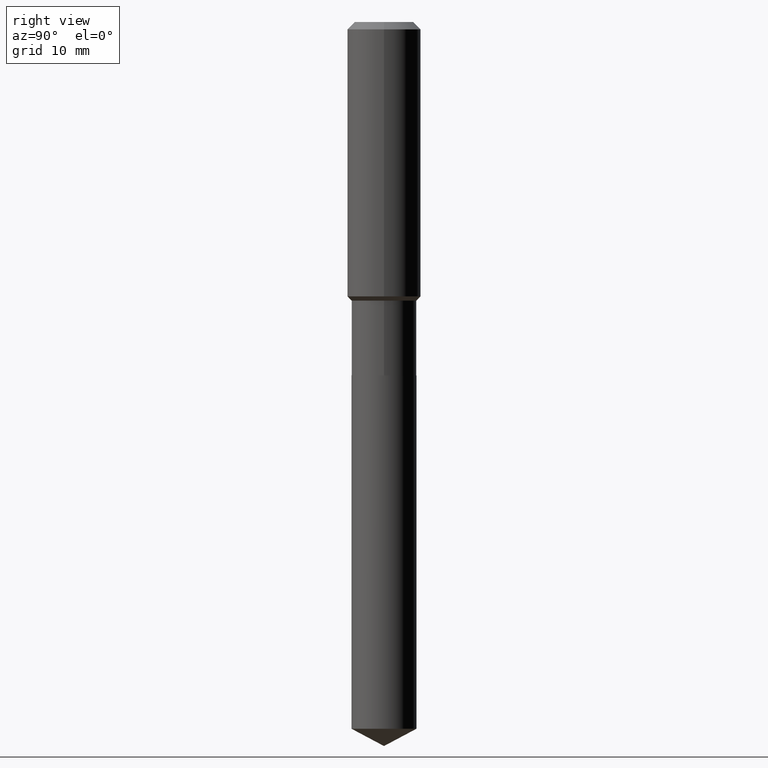
[diagram: clean part render]
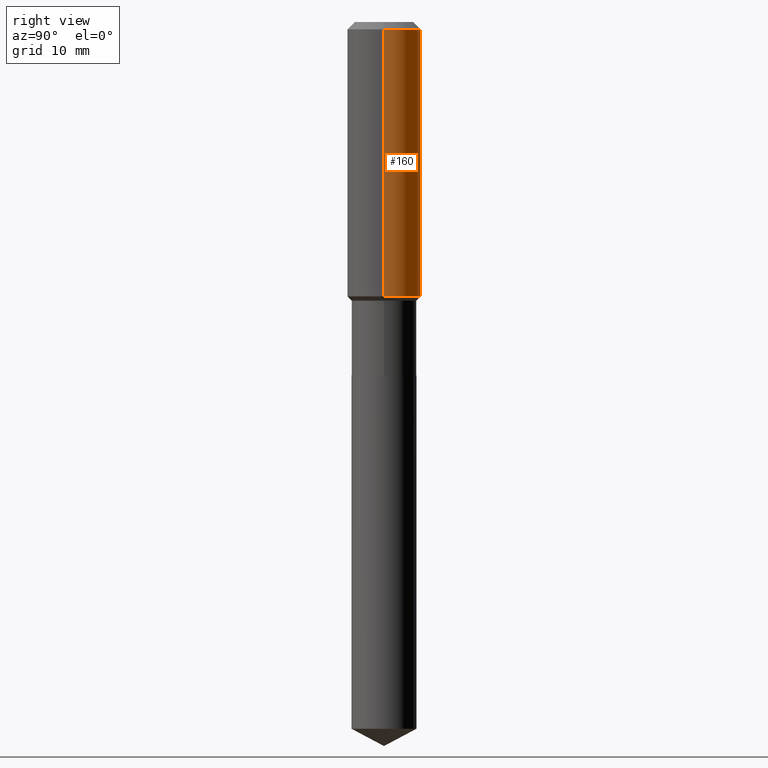
[diagram: same view with one face highlighted and labeled with its STEP entity id]
A machine part, right view. The second image highlights one B-rep face of the part: STEP entity #160.
In plain terms, the highlighted cylindrical surface (partial cylindrical patch) has radius 5.9995 mm, axis along (-0, 0, 1).
Its self-contained STEP definition (entity closure, byte-faithful):
#1 = DIRECTION ( 'NONE',  ( -2.445468806185136597E-29, 3.491481338843145583E-15, 1.000000000000000000 ) ) ;
#32 = VERTEX_POINT ( 'NONE', #277 ) ;
#33 = CARTESIAN_POINT ( 'NONE',  ( 4.304636466087385309E-29, -6.145880026698644311E-15, -1.760249999999999426 ) ) ;
#41 = ORIENTED_EDGE ( 'NONE', *, *, #362, .F. ) ;
#48 = CYLINDRICAL_SURFACE ( 'NONE', #246, 0.2362000000000001043 ) ;
#53 = FACE_OUTER_BOUND ( 'NONE', #92, .T. ) ;
#89 = CARTESIAN_POINT ( 'NONE',  ( 0.2361999999999999933, -1.814313362916447440E-15, -0.04724000000000028177 ) ) ;
#90 = VERTEX_POINT ( 'NONE', #324 ) ;
#92 = EDGE_LOOP ( 'NONE', ( #103, #459, #41, #288 ) ) ;
#103 = ORIENTED_EDGE ( 'NONE', *, *, #484, .T. ) ;
#126 = VECTOR ( 'NONE', #467, 39.37007874015748143 ) ;
#129 = DIRECTION ( 'NONE',  ( 1.000000000000000000, -6.982962677686266711E-15, 4.876176775795935793E-29 ) ) ;
#138 = EDGE_CURVE ( 'NONE', #249, #32, #245, .T. ) ;
#160 = ADVANCED_FACE ( 'NONE', ( #53 ), #48, .T. ) ;
#161 = VERTEX_POINT ( 'NONE', #89 ) ;
#169 = AXIS2_PLACEMENT_3D ( 'NONE', #174, #327, #293 ) ;
#174 = CARTESIAN_POINT ( 'NONE',  ( 1.155239464041865506E-30, -1.649375784469511859E-16, -0.04724000000000028177 ) ) ;
#175 = VECTOR ( 'NONE', #465, 39.37007874015748143 ) ;
#187 = DIRECTION ( 'NONE',  ( 1.000000000000000000, -6.982962677686266711E-15, 0.000000000000000000 ) ) ;
#192 = CIRCLE ( 'NONE', #477, 0.2362000000000002153 ) ;
#212 = DIRECTION ( 'NONE',  ( -2.445468806185136597E-29, 3.491481338843145583E-15, 1.000000000000000000 ) ) ;
#245 = LINE ( 'NONE', #285, #175 ) ;
#246 = AXIS2_PLACEMENT_3D ( 'NONE', #355, #212, #129 ) ;
#249 = VERTEX_POINT ( 'NONE', #437 ) ;
#277 = CARTESIAN_POINT ( 'NONE',  ( -0.2361999999999999933, -1.477106860707440035E-15, -0.04724000000000028177 ) ) ;
#285 = CARTESIAN_POINT ( 'NONE',  ( -0.2362000000000001043, 1.678301941865357380E-15, -1.161852468318209317E-29 ) ) ;
#288 = ORIENTED_EDGE ( 'NONE', *, *, #319, .F. ) ;
#293 = DIRECTION ( 'NONE',  ( 1.000000000000000000, -6.982962677686266711E-15, 0.000000000000000000 ) ) ;
#319 = EDGE_CURVE ( 'NONE', #90, #161, #367, .T. ) ;
#324 = CARTESIAN_POINT ( 'NONE',  ( 0.2362000000000002153, -7.795255811168141625E-15, -1.760249999999999426 ) ) ;
#327 = DIRECTION ( 'NONE',  ( -2.445468806185136597E-29, 3.491481338843145583E-15, 1.000000000000000000 ) ) ;
#355 = CARTESIAN_POINT ( 'NONE',  ( 0.000000000000000000, 0.000000000000000000, 0.000000000000000000 ) ) ;
#362 = EDGE_CURVE ( 'NONE', #161, #32, #469, .T. ) ;
#367 = LINE ( 'NONE', #432, #126 ) ;
#432 = CARTESIAN_POINT ( 'NONE',  ( 0.2362000000000001043, -1.649375784469496920E-15, 1.151752954443000508E-29 ) ) ;
#437 = CARTESIAN_POINT ( 'NONE',  ( -0.2362000000000002153, -4.467578084833286339E-15, -1.760249999999999426 ) ) ;
#459 = ORIENTED_EDGE ( 'NONE', *, *, #138, .T. ) ;
#465 = DIRECTION ( 'NONE',  ( -2.445468806185136877E-29, 3.491481338843145188E-15, 1.000000000000000000 ) ) ;
#467 = DIRECTION ( 'NONE',  ( -2.445468806185136877E-29, 3.491481338843145188E-15, 1.000000000000000000 ) ) ;
#469 = CIRCLE ( 'NONE', #169, 0.2361999999999999933 ) ;
#477 = AXIS2_PLACEMENT_3D ( 'NONE', #33, #1, #187 ) ;
#484 = EDGE_CURVE ( 'NONE', #90, #249, #192, .T. ) ;